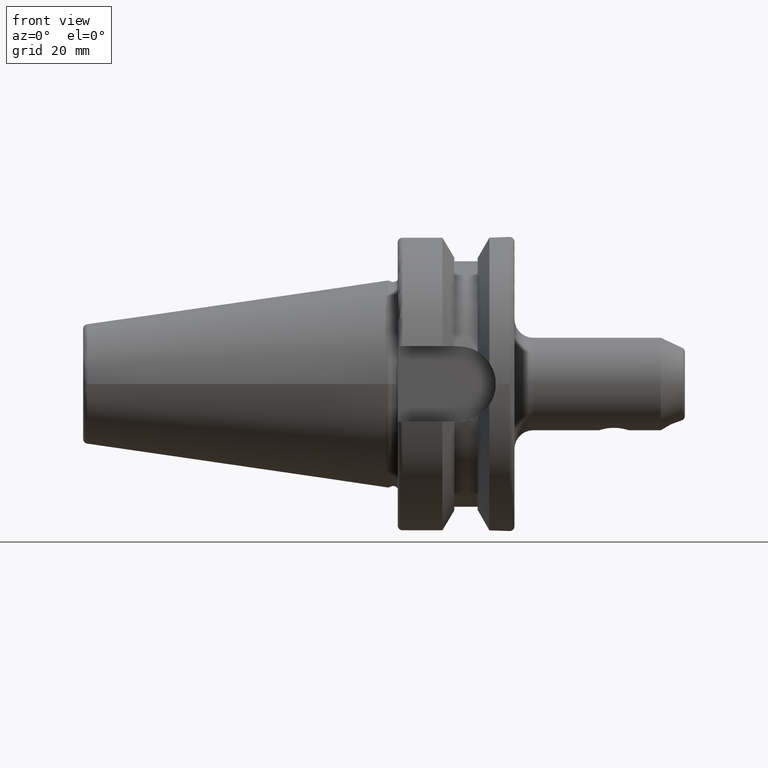
[diagram: clean part render]
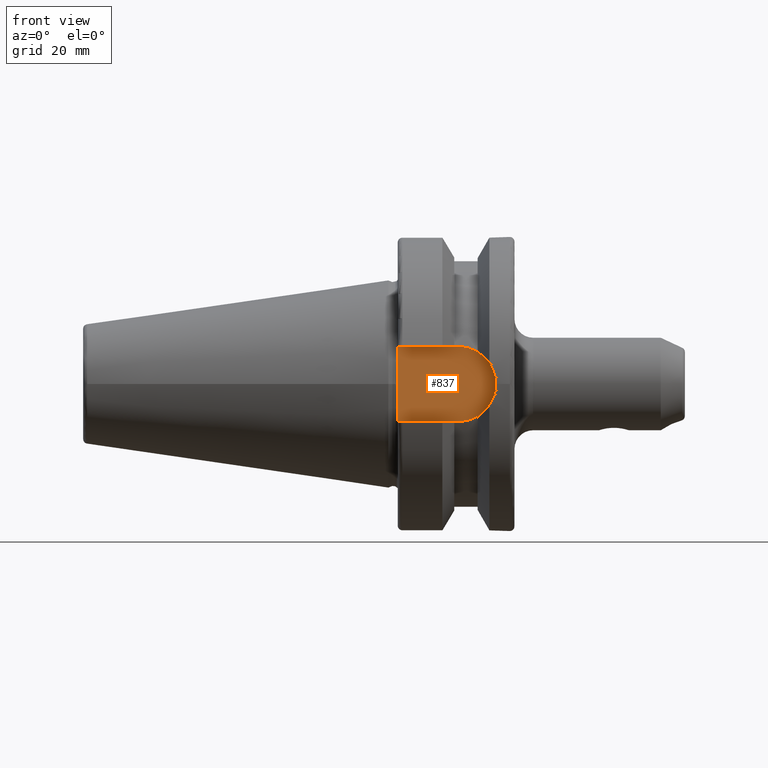
[diagram: same view with one face highlighted and labeled with its STEP entity id]
A machine part, front view. The second image highlights one B-rep face of the part: STEP entity #837.
In plain terms, the highlighted planar face has unit normal (0, 1, 0).
Its self-contained STEP definition (entity closure, byte-faithful):
#23=PLANE('',#929);
#78=CIRCLE('',#926,8.05);
#150=FACE_OUTER_BOUND('',#205,.T.);
#205=EDGE_LOOP('',(#655,#656,#657,#658));
#279=LINE('',#1614,#327);
#281=LINE('',#1619,#329);
#285=LINE('',#1641,#333);
#327=VECTOR('',#1090,10.);
#329=VECTOR('',#1094,10.);
#333=VECTOR('',#1100,10.);
#385=VERTEX_POINT('',#1585);
#386=VERTEX_POINT('',#1587);
#392=VERTEX_POINT('',#1612);
#394=VERTEX_POINT('',#1618);
#479=EDGE_CURVE('',#385,#386,#78,.T.);
#487=EDGE_CURVE('',#392,#385,#279,.T.);
#489=EDGE_CURVE('',#386,#394,#281,.T.);
#495=EDGE_CURVE('',#394,#392,#285,.T.);
#655=ORIENTED_EDGE('',*,*,#489,.F.);
#656=ORIENTED_EDGE('',*,*,#479,.F.);
#657=ORIENTED_EDGE('',*,*,#487,.F.);
#658=ORIENTED_EDGE('',*,*,#495,.F.);
#837=ADVANCED_FACE('',(#150),#23,.F.);
#926=AXIS2_PLACEMENT_3D('',#1588,#1081,#1082);
#929=AXIS2_PLACEMENT_3D('',#1640,#1098,#1099);
#1081=DIRECTION('center_axis',(0.,1.,0.));
#1082=DIRECTION('ref_axis',(0.,0.,1.));
#1090=DIRECTION('',(1.,0.,8.57315076930623E-17));
#1094=DIRECTION('',(-1.,0.,-8.57315076930623E-17));
#1098=DIRECTION('center_axis',(0.,1.,0.));
#1099=DIRECTION('ref_axis',(0.,0.,1.));
#1100=DIRECTION('',(0.,0.,1.));
#1585=CARTESIAN_POINT('',(14.95,-22.6,8.05));
#1587=CARTESIAN_POINT('',(14.95,-22.6,-8.05));
#1588=CARTESIAN_POINT('Origin',(14.95,-22.6,0.));
#1612=CARTESIAN_POINT('',(1.99999999999999,-22.6,8.05));
#1614=CARTESIAN_POINT('',(1.99999999999999,-22.6,8.05));
#1618=CARTESIAN_POINT('',(1.99999999999999,-22.6,-8.05));
#1619=CARTESIAN_POINT('',(14.95,-22.6,-8.05));
#1640=CARTESIAN_POINT('Origin',(12.5,-22.6,0.));
#1641=CARTESIAN_POINT('',(1.99999999999999,-22.6,0.));